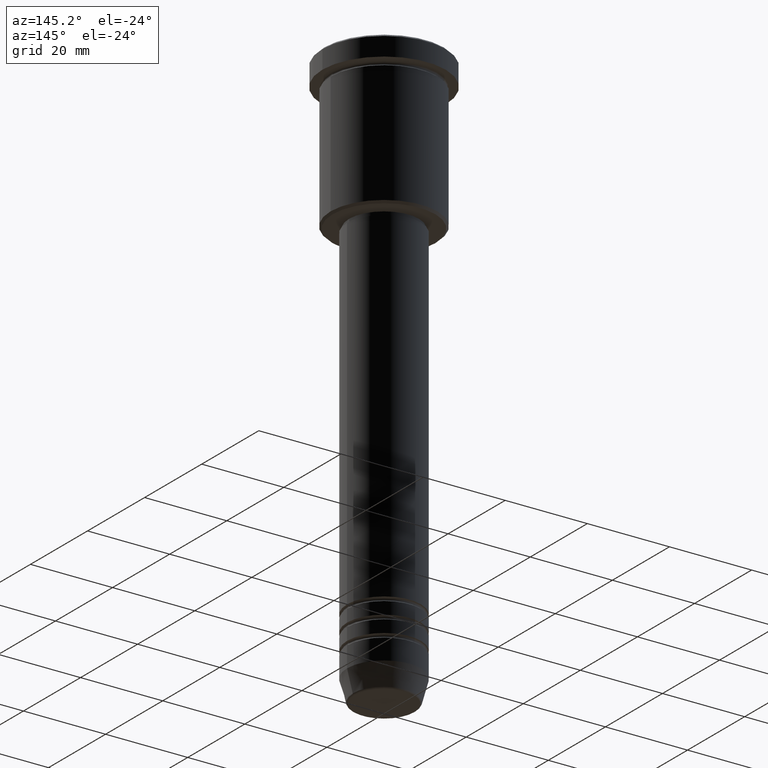
[diagram: clean part render]
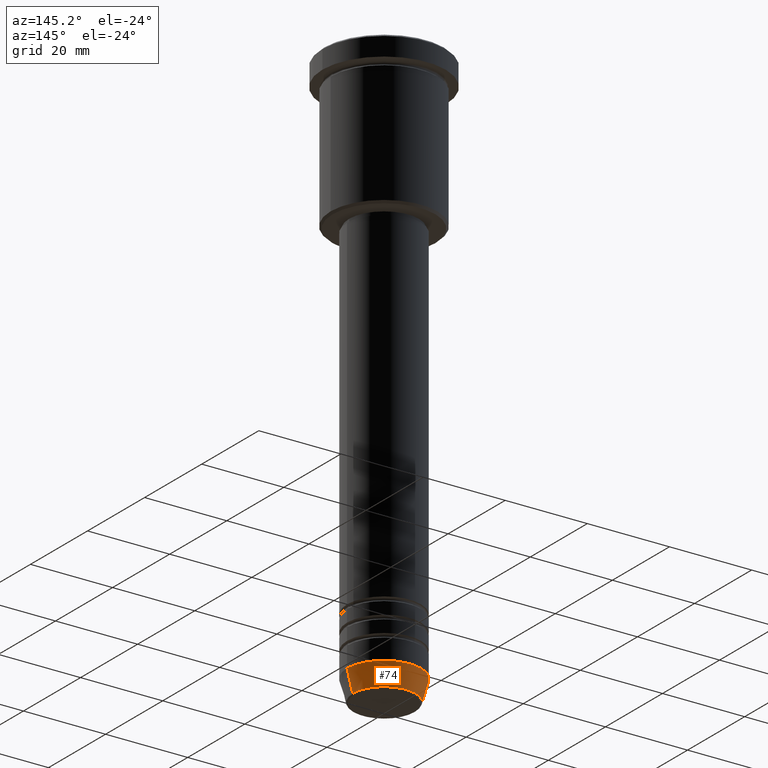
[diagram: same view with one face highlighted and labeled with its STEP entity id]
A machine part, auxiliary view. The second image highlights one B-rep face of the part: STEP entity #74.
In plain terms, the highlighted conical surface has half-angle 15 deg.
Its self-contained STEP definition (entity closure, byte-faithful):
#8 = VECTOR ( 'NONE', #874, 1000.000000000000000 ) ;
#18 = CARTESIAN_POINT ( 'NONE',  ( 9.000000000000001776, 0.000000000000000000, -134.5000000000000000 ) ) ;
#74 = ADVANCED_FACE ( 'NONE', ( #965 ), #1114, .T. ) ;
#139 = CARTESIAN_POINT ( 'NONE',  ( -9.000000000000001776, 1.102182119232617911E-15, -134.5000000000000000 ) ) ;
#160 = AXIS2_PLACEMENT_3D ( 'NONE', #985, #434, #530 ) ;
#166 = CARTESIAN_POINT ( 'NONE',  ( 7.625578860783879698, 0.000000000000000000, -139.6294095225512706 ) ) ;
#192 = VERTEX_POINT ( 'NONE', #597 ) ;
#216 = EDGE_CURVE ( 'NONE', #192, #706, #241, .T. ) ;
#239 = CARTESIAN_POINT ( 'NONE',  ( 9.000000000000001776, 0.000000000000000000, -134.5000000000000000 ) ) ;
#241 = LINE ( 'NONE', #139, #8 ) ;
#278 = EDGE_CURVE ( 'NONE', #523, #706, #399, .T. ) ;
#334 = CARTESIAN_POINT ( 'NONE',  ( 0.000000000000000000, 0.000000000000000000, -139.6294095225512706 ) ) ;
#380 = VECTOR ( 'NONE', #1057, 1000.000000000000000 ) ;
#385 = EDGE_LOOP ( 'NONE', ( #978, #579, #960, #1028 ) ) ;
#399 = CIRCLE ( 'NONE', #160, 9.000000000000001776 ) ;
#414 = LINE ( 'NONE', #239, #380 ) ;
#433 = DIRECTION ( 'NONE',  ( 1.000000000000000000, 0.000000000000000000, 0.000000000000000000 ) ) ;
#434 = DIRECTION ( 'NONE',  ( -0.000000000000000000, -0.000000000000000000, 1.000000000000000000 ) ) ;
#503 = DIRECTION ( 'NONE',  ( -0.000000000000000000, -0.000000000000000000, 1.000000000000000000 ) ) ;
#523 = VERTEX_POINT ( 'NONE', #18 ) ;
#530 = DIRECTION ( 'NONE',  ( 1.000000000000000000, 0.000000000000000000, 0.000000000000000000 ) ) ;
#579 = ORIENTED_EDGE ( 'NONE', *, *, #216, .T. ) ;
#591 = CARTESIAN_POINT ( 'NONE',  ( 0.000000000000000000, 0.000000000000000000, -134.5000000000000000 ) ) ;
#597 = CARTESIAN_POINT ( 'NONE',  ( -7.625578860783880586, 1.018023096791544096E-15, -139.6294095225512706 ) ) ;
#635 = EDGE_CURVE ( 'NONE', #817, #523, #414, .T. ) ;
#706 = VERTEX_POINT ( 'NONE', #707 ) ;
#707 = CARTESIAN_POINT ( 'NONE',  ( -9.000000000000001776, 1.102182119232617911E-15, -134.5000000000000000 ) ) ;
#750 = AXIS2_PLACEMENT_3D ( 'NONE', #591, #503, #876 ) ;
#817 = VERTEX_POINT ( 'NONE', #166 ) ;
#829 = AXIS2_PLACEMENT_3D ( 'NONE', #334, #883, #433 ) ;
#837 = EDGE_CURVE ( 'NONE', #817, #192, #927, .T. ) ;
#874 = DIRECTION ( 'NONE',  ( -0.2588190451025214056, 3.169619151431772953E-17, 0.9659258262890680902 ) ) ;
#876 = DIRECTION ( 'NONE',  ( 1.000000000000000000, 0.000000000000000000, 0.000000000000000000 ) ) ;
#883 = DIRECTION ( 'NONE',  ( -0.000000000000000000, -0.000000000000000000, 1.000000000000000000 ) ) ;
#927 = CIRCLE ( 'NONE', #829, 7.625578860783879698 ) ;
#960 = ORIENTED_EDGE ( 'NONE', *, *, #278, .F. ) ;
#965 = FACE_OUTER_BOUND ( 'NONE', #385, .T. ) ;
#978 = ORIENTED_EDGE ( 'NONE', *, *, #837, .T. ) ;
#985 = CARTESIAN_POINT ( 'NONE',  ( 0.000000000000000000, 0.000000000000000000, -134.5000000000000000 ) ) ;
#1028 = ORIENTED_EDGE ( 'NONE', *, *, #635, .F. ) ;
#1057 = DIRECTION ( 'NONE',  ( 0.2588190451025214056, 0.000000000000000000, 0.9659258262890680902 ) ) ;
#1114 = CONICAL_SURFACE ( 'NONE', #750, 9.000000000000001776, 0.2617993877991501295 ) ;